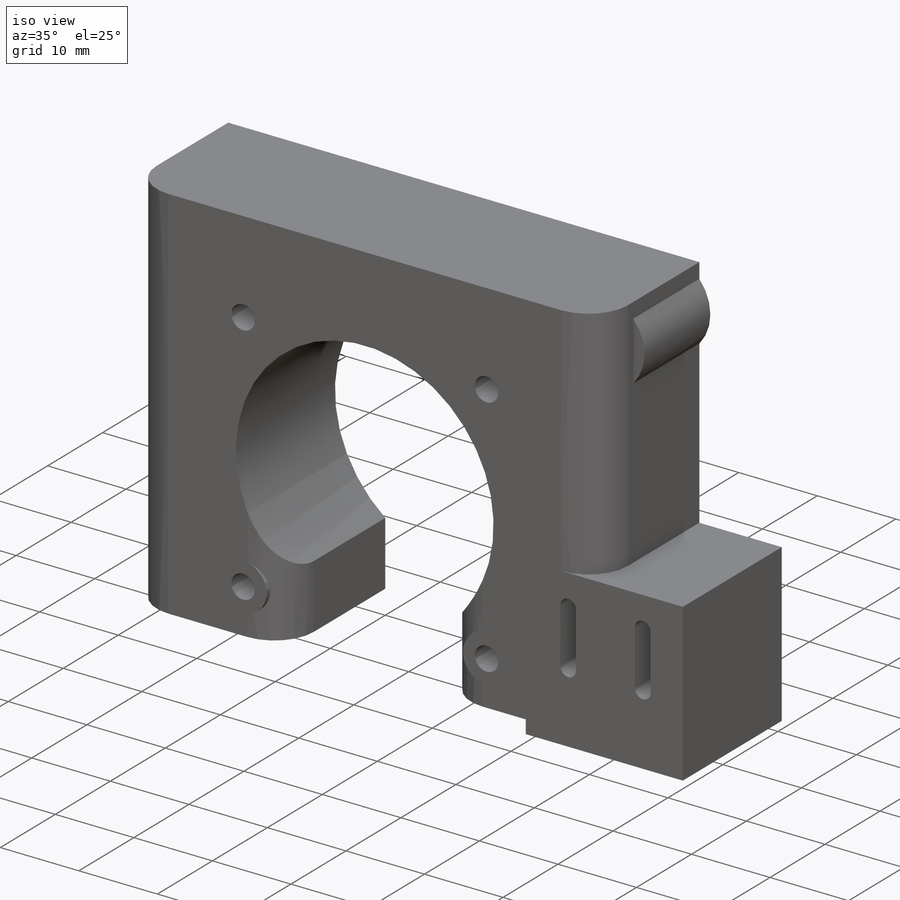
[diagram: iso view]
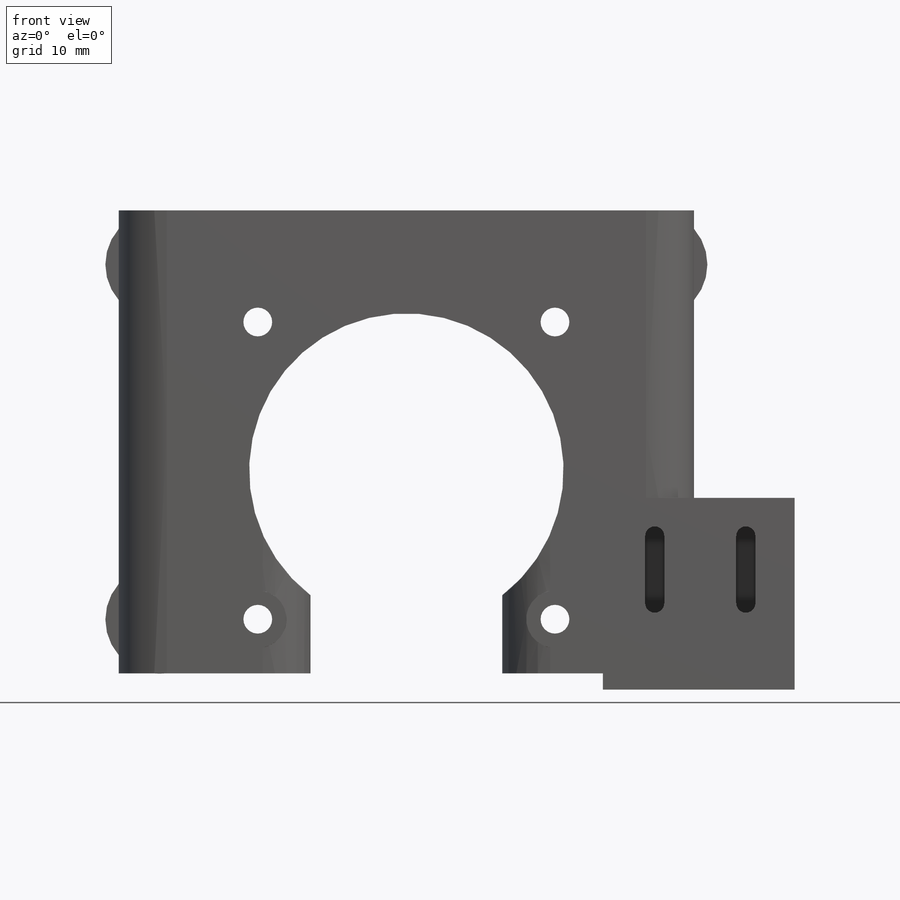
[diagram: front view]
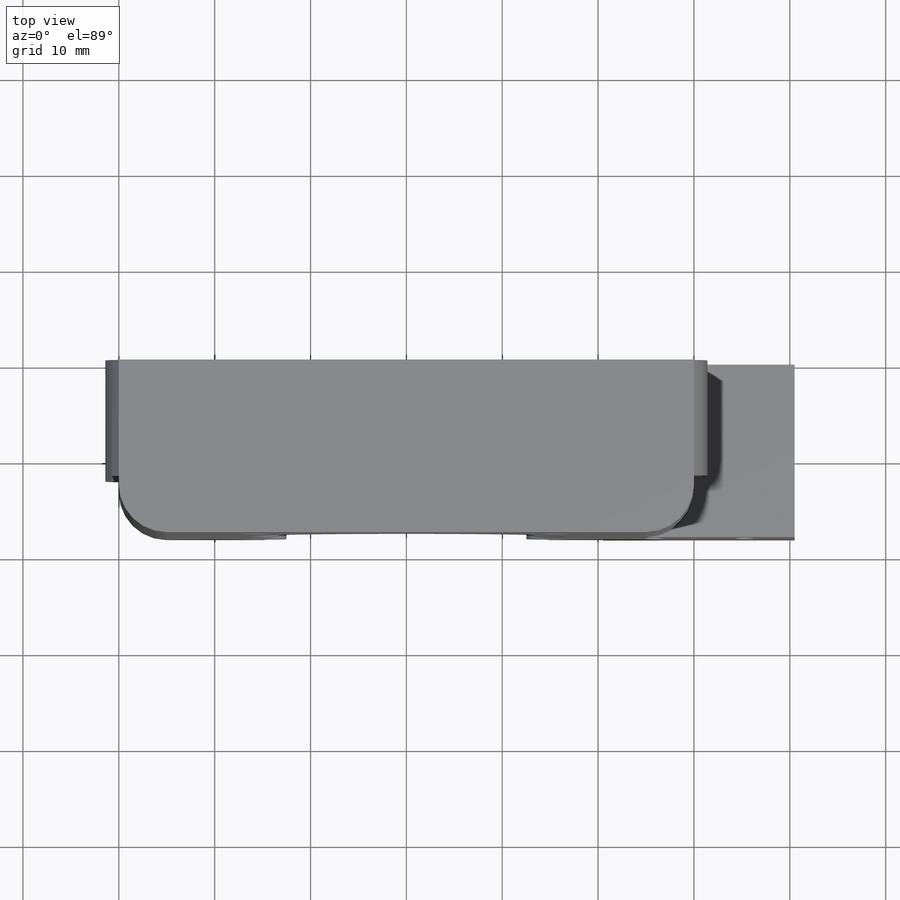
[diagram: top view]
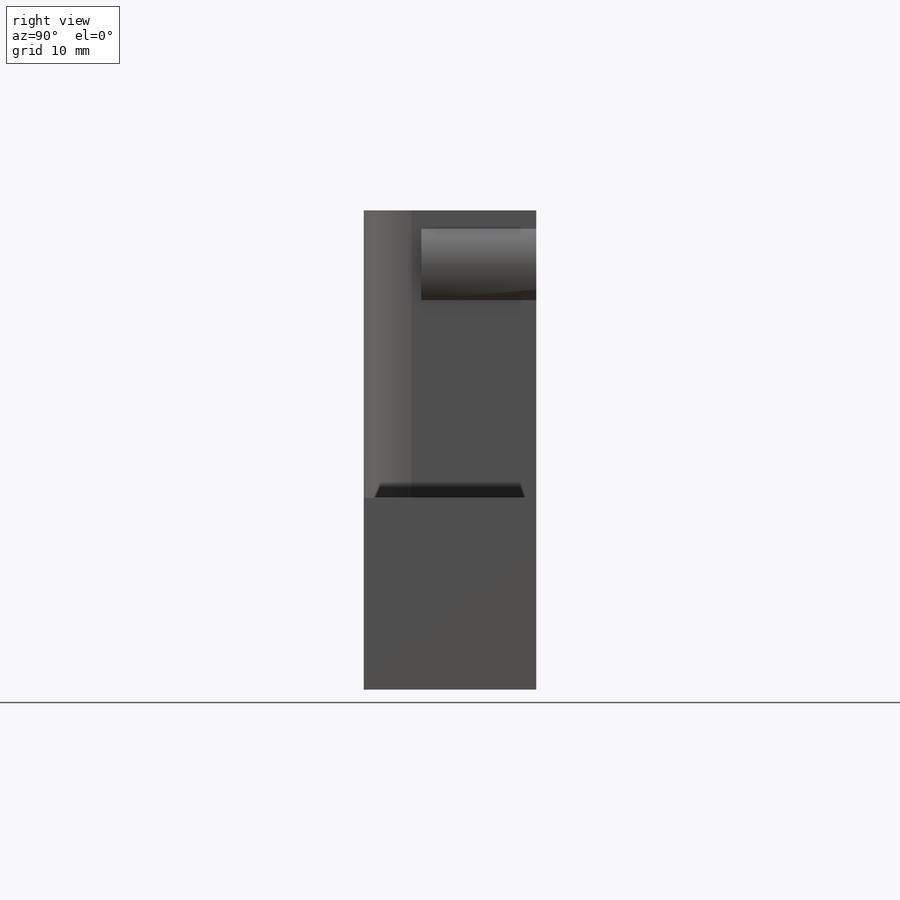
[diagram: right view]
SOLIDWORKS PART (.sldprt)
format: sldprt  version: not decoded by parser v0  size: 446,464 bytes
history: native  units: mm
features: sketch x10, extrude x5, cut_extrude x5, plane x3, material x1, fillet x1 (+10 scaffold rows collapsed)
feature tree (35):
  scaffold x10  (default folders/planes/origin — collapsed)
  material  "ABS"
  plane  "Спереди"
  plane  "Сверху"
  plane  "Справа"
  sketch  "Эскиз1"  dims[D3=3.0mm D1=60.0mm D2=20.0mm D4=~12.423666mm]
  extrude  "Бобышка-Вытянуть1"  Depth=18mm
  sketch  "Эскиз9"
  extrude  "Бобышка-Вытянуть4"  Depth=6mm
  fillet  "Скругление1"  Radius=5mm
  sketch  "Эскиз2"  dims[D1=6.0mm D2=6.0mm]
  extrude  "Бобышка-Вытянуть2"  Depth=4mm
  sketch  "Эскиз3"  dims[D1=3.0mm]
  cut_extrude  "Вырез-Вытянуть1"  Depth=8mm
  sketch  "Эскиз5"  dims[D1=20.0mm]
  extrude  "Бобышка-Вытянуть3"  [1 undecoded]
  sketch  "Эскиз6"  dims[D1=3.0mm]
  cut_extrude  "Вырез-Вытянуть6"  [1 undecoded]
  sketch  "Эскиз7"  dims[D1=2.0mm D2=7.0mm]
  cut_extrude  "Вырез-Вытянуть7"  Depth=6mm
  sketch  "Эскиз8"  dims[D1=7.0mm]
  cut_extrude  "Вырез-Вытянуть8"  Depth=3mm
  sketch  "Эскиз10"  dims[D1=~8.082904mm]
  extrude  "Бобышка-Вытянуть5"  Depth=12mm
  sketch  "Эскиз11"  dims[D1=4.0mm]
  cut_extrude  "Вырез-Вытянуть9"  Depth=10mm
decode coverage: 18 of 21 modeling features carry decoded parameters
note: ~ marks probable driven/reference dimensions
note: 2 parameter values undecoded
note: suppression state not decoded; provenance and decode notes live in map.json
